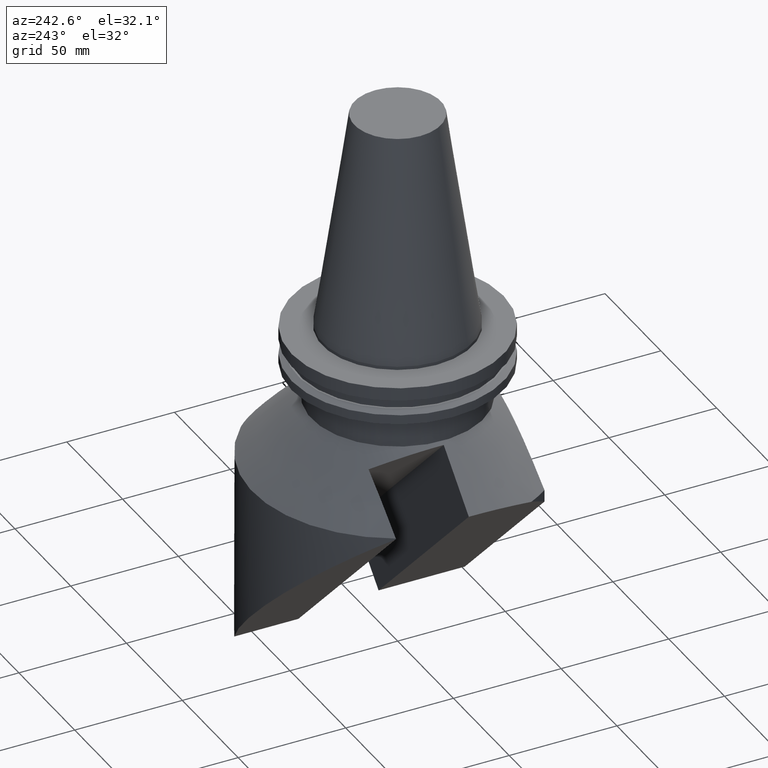
[diagram: clean part render]
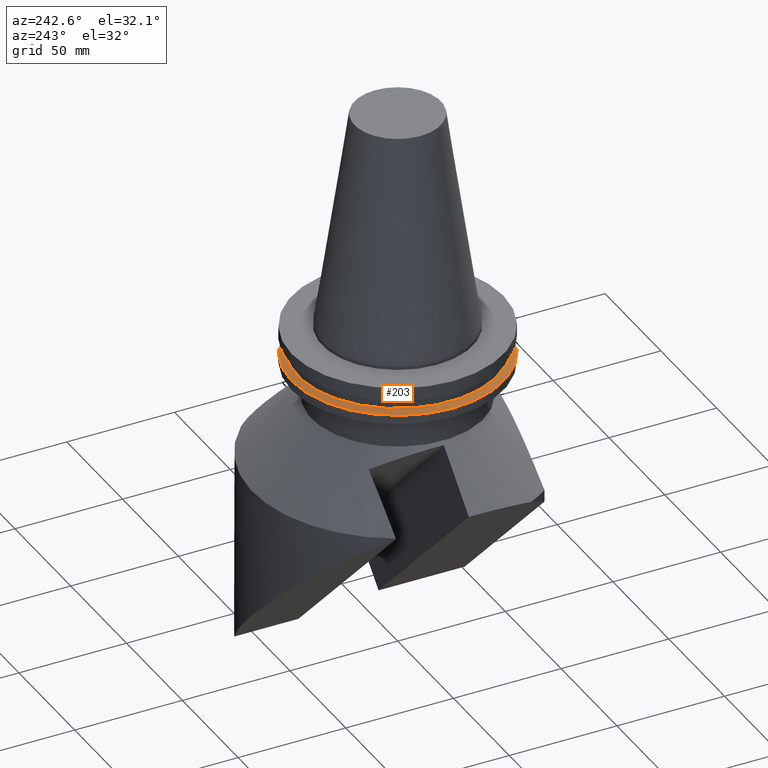
[diagram: same view with one face highlighted and labeled with its STEP entity id]
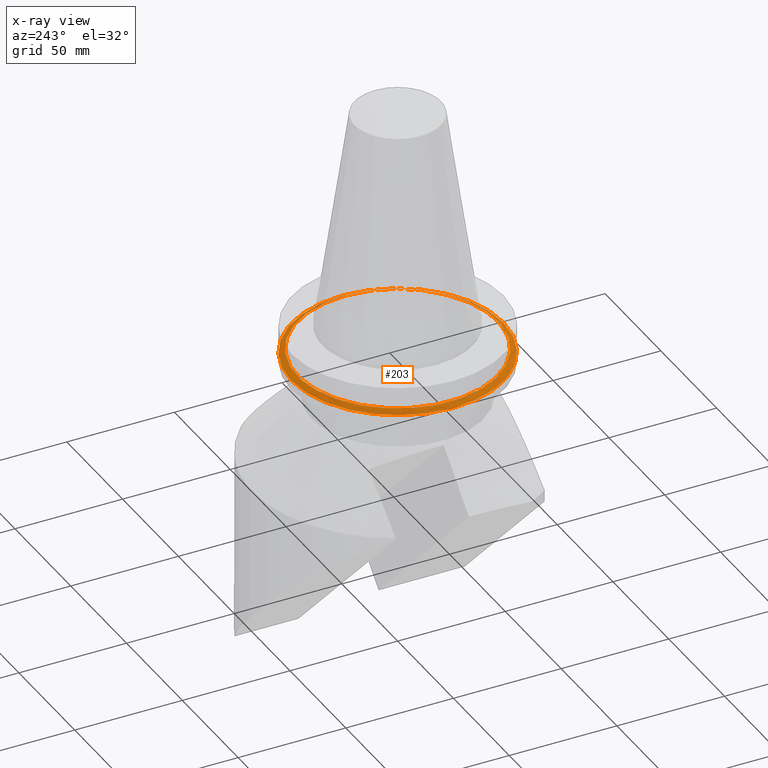
[diagram: x-ray of the same camera — body ghosted, the highlighted face saturated]
A machine part, auxiliary view. The second image highlights one B-rep face of the part: STEP entity #203.
The next image is the same camera in x-ray: the body ghosted, the highlighted face saturated — about 5% of this face is hidden behind the body in this view.
In plain terms, the highlighted conical surface has half-angle 60 deg.
Its self-contained STEP definition (entity closure, byte-faithful):
#120=EDGE_CURVE('Unnamed[1]',#346,#346,#347,.T.);
#196=EDGE_CURVE('Unnamed[1]',#461,#461,#462,.T.);
#203=ADVANCED_FACE('Unnamed[1]',(#471,#472),#473,.T.);
#346=VERTEX_POINT('',#667);
#347=CIRCLE('',#668,49.2125);
#461=VERTEX_POINT('',#836);
#462=CIRCLE('',#837,46.43053755);
#471=FACE_BOUND('',#850,.T.);
#472=FACE_BOUND('',#851,.T.);
#473=CONICAL_SURFACE('',#852,47.821518775,1.04719755103023);
#667=CARTESIAN_POINT('',(49.2125,-2.5106842553857E-014,-14.64616677));
#668=AXIS2_PLACEMENT_3D('',#1112,#1113,#1114);
#836=CARTESIAN_POINT('',(46.43053755,-2.35147623817156E-014,-13.04));
#837=AXIS2_PLACEMENT_3D('',#1233,#1234,#1235);
#850=EDGE_LOOP('',(#1241));
#851=EDGE_LOOP('',(#1242));
#852=AXIS2_PLACEMENT_3D('',#1243,#1244,#1245);
#1112=CARTESIAN_POINT('',(1.79363812546588E-015,-3.25210231411077E-015,-14.64616677));
#1113=DIRECTION('',(1.22464679914735E-016,-2.22044604925031E-016,-1.0));
#1114=DIRECTION('',(1.0,-4.44089209850063E-016,1.22464679914735E-016));
#1233=CARTESIAN_POINT('',(1.59693942608815E-015,-2.89546164822241E-015,-13.04));
#1234=DIRECTION('',(1.22464679914735E-016,-2.22044604925031E-016,-1.0));
#1235=DIRECTION('',(1.0,-4.44089209850063E-016,1.22464679914735E-016));
#1241=ORIENTED_EDGE('',*,*,#120,.F.);
#1242=ORIENTED_EDGE('',*,*,#196,.T.);
#1243=CARTESIAN_POINT('',(1.69528877577701E-015,-3.07378198116659E-015,-13.843083385));
#1244=DIRECTION('',(1.22464679914735E-016,-2.22044604925031E-016,-1.0));
#1245=DIRECTION('',(1.0,-4.44089209850063E-016,1.22464679914735E-016));